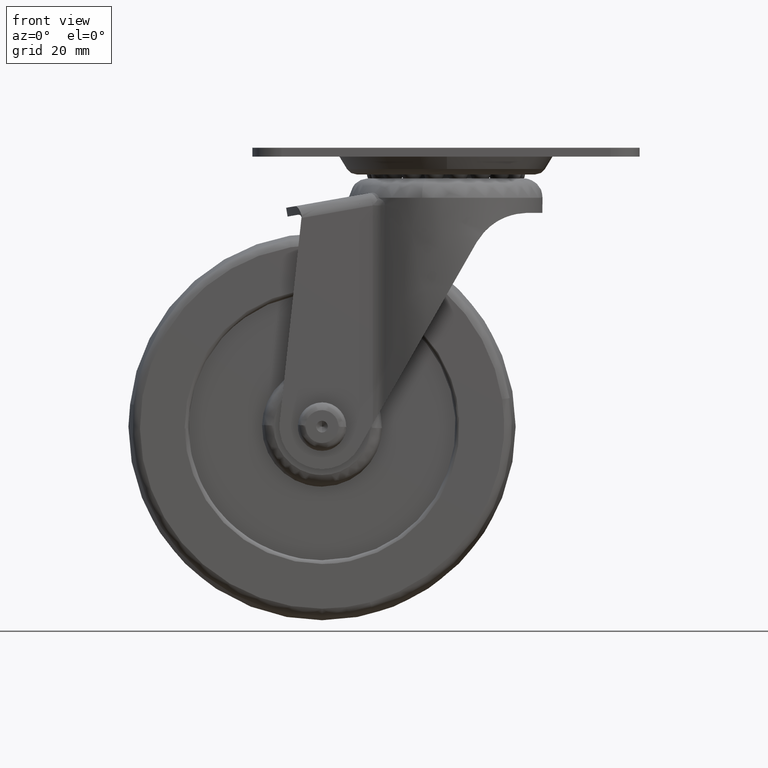
[diagram: clean part render]
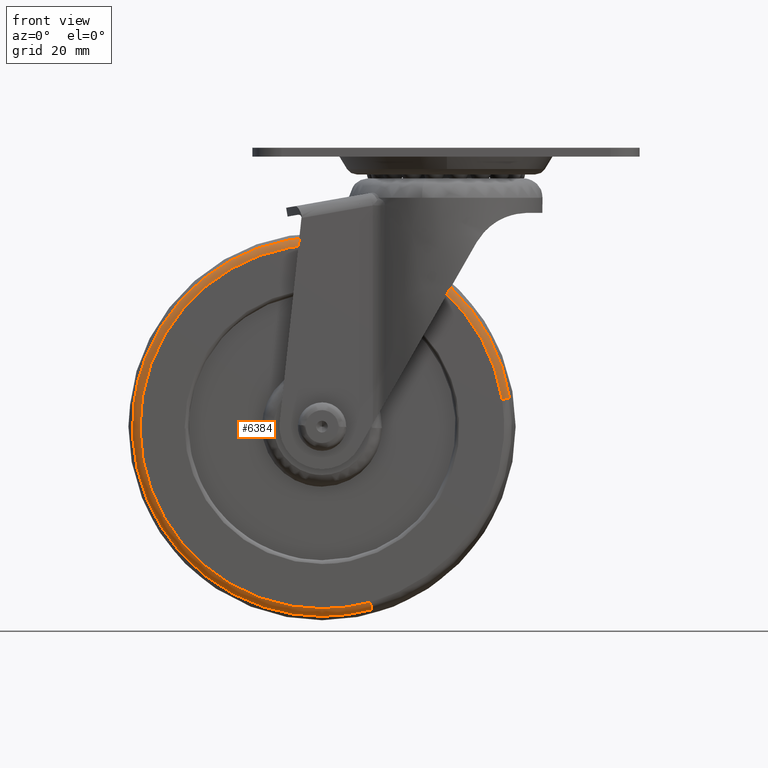
[diagram: same view with one face highlighted and labeled with its STEP entity id]
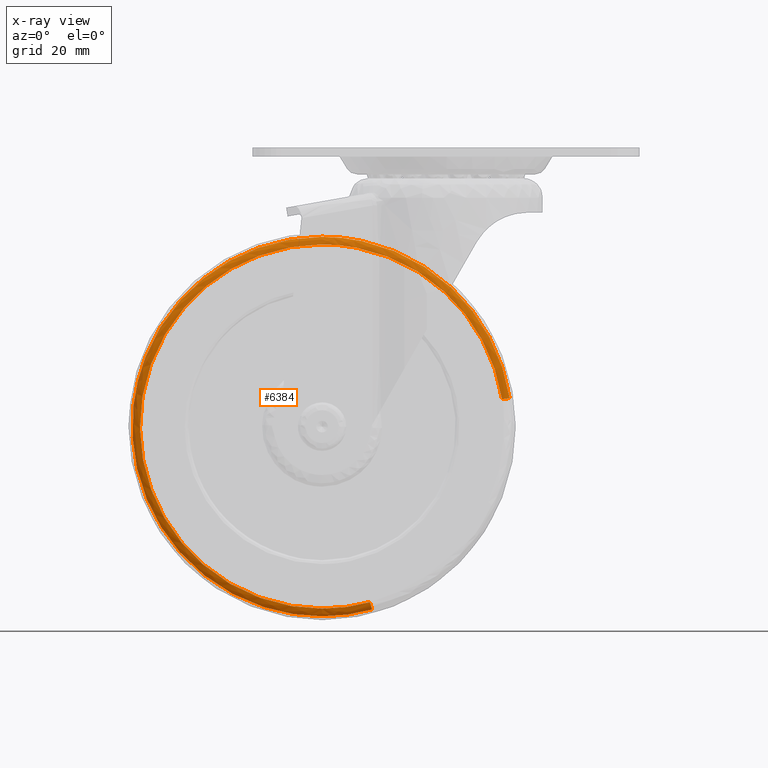
[diagram: x-ray of the same camera — body ghosted, the highlighted face saturated]
A machine part, front view. The second image highlights one B-rep face of the part: STEP entity #6384.
The next image is the same camera in x-ray: the body ghosted, the highlighted face saturated — about 0% of this face is hidden behind the body in this view.
In plain terms, the highlighted face is a freeform B-spline surface patch.
Its self-contained STEP definition (entity closure, byte-faithful):
#6173=CARTESIAN_POINT('',(12.903178560643820,-11.838232933250300,-47.261972426486572));
#6174=VERTEX_POINT('',#6173);
#6175=CARTESIAN_POINT('',(48.435740678916673,-11.838213538971610,7.359824665406185));
#6176=VERTEX_POINT('',#6175);
#6192=CARTESIAN_POINT('',(46.486915931268740,-13.499999999999170,7.063700831069298));
#6193=VERTEX_POINT('',#6192);
#6194=CARTESIAN_POINT('',(48.435740678916673,-11.838213538971607,7.359824665406185));
#6195=CARTESIAN_POINT('',(48.153850268417358,-13.499998507188804,7.316991429930903));
#6196=CARTESIAN_POINT('',(46.486915931268754,-13.499999999999163,7.063700831069298));
#6204=(BOUNDED_CURVE()B_SPLINE_CURVE(2,(#6194,#6195,#6196),.UNSPECIFIED.,.F.,.U.)B_SPLINE_CURVE_WITH_KNOTS((3,3),(-1.703928657413708,-0.288870877481267),.UNSPECIFIED.)CURVE()GEOMETRIC_REPRESENTATION_ITEM()RATIONAL_B_SPLINE_CURVE((0.893833881818771,0.684209894550764,0.895978119291706))REPRESENTATION_ITEM(''));
#6205=EDGE_CURVE('',#6176,#6193,#6204,.T.);
#6207=CARTESIAN_POINT('',(12.384016275081150,-13.499999999999170,-45.360375713613479));
#6208=VERTEX_POINT('',#6207);
#6224=CARTESIAN_POINT('',(12.903178560643823,-11.838232933250294,-47.261972426486579));
#6225=CARTESIAN_POINT('',(12.828079941960938,-13.499998687588873,-46.986899890463576));
#6226=CARTESIAN_POINT('',(12.384016275081146,-13.499999999999176,-45.360375713613479));
#6234=(BOUNDED_CURVE()B_SPLINE_CURVE(2,(#6224,#6225,#6226),.UNSPECIFIED.,.F.,.U.)B_SPLINE_CURVE_WITH_KNOTS((3,3),(-1.703917997500283,-0.288870869538946),.UNSPECIFIED.)CURVE()GEOMETRIC_REPRESENTATION_ITEM()RATIONAL_B_SPLINE_CURVE((0.855294211390510,0.654712475411669,0.857349026827509))REPRESENTATION_ITEM(''));
#6235=EDGE_CURVE('',#6174,#6208,#6234,.T.);
#6240=CARTESIAN_POINT('',(48.453074501481368,-11.712031403802978,7.362458538981688));
#6241=CARTESIAN_POINT('',(41.090631962499572,-11.712031403802978,55.815533040463059));
#6242=CARTESIAN_POINT('',(-7.362442538981783,-11.712031403802978,48.453090501481277));
#6243=CARTESIAN_POINT('',(-55.815517040463149,-11.712031403802978,41.090647962499489));
#6244=CARTESIAN_POINT('',(-48.453074501481368,-11.712031403802978,-7.362426538981881));
#6245=CARTESIAN_POINT('',(-41.090631962499572,-11.712031403802978,-55.815501040463232));
#6246=CARTESIAN_POINT('',(7.362442538981789,-11.712031403802978,-48.453058501481465));
#6247=CARTESIAN_POINT('',(10.169126452252513,-11.712031403802980,-48.026583004329915));
#6248=CARTESIAN_POINT('',(12.907795603532096,-11.712031403802978,-47.278888401893227));
#6249=CARTESIAN_POINT('',(48.252209078485201,-13.617655541869762,7.331937046793769));
#6250=CARTESIAN_POINT('',(40.920288031691321,-13.617655541869759,55.584146125278949));
#6251=CARTESIAN_POINT('',(-7.331921046793866,-13.617655541869762,48.252225078485104));
#6252=CARTESIAN_POINT('',(-55.584130125279046,-13.617655541869759,40.920304031691224));
#6253=CARTESIAN_POINT('',(-48.252209078485201,-13.617655541869762,-7.331905046793962));
#6254=CARTESIAN_POINT('',(-40.920288031691321,-13.617655541869759,-55.584114125279150));
#6255=CARTESIAN_POINT('',(7.331921046793873,-13.617655541869762,-48.252193078485284));
#6256=CARTESIAN_POINT('',(10.126969666386003,-13.617655541869761,-47.827485563696364));
#6257=CARTESIAN_POINT('',(12.854285483678449,-13.617655541869757,-47.082890578655160));
#6258=CARTESIAN_POINT('',(46.361356608419435,-13.495963753403281,7.044622097148515));
#6259=CARTESIAN_POINT('',(39.316750511270818,-13.495963753403277,53.405978705567939));
#6260=CARTESIAN_POINT('',(-7.044606097148610,-13.495963753403281,46.361372608419337));
#6261=CARTESIAN_POINT('',(-53.405962705568058,-13.495963753403277,39.316766511270735));
#6262=CARTESIAN_POINT('',(-46.361356608419442,-13.495963753403281,-7.044590097148708));
#6263=CARTESIAN_POINT('',(-39.316750511270818,-13.495963753403277,-53.405946705568148));
#6264=CARTESIAN_POINT('',(7.044606097148616,-13.495963753403281,-46.361340608419532));
#6265=CARTESIAN_POINT('',(9.730125543108235,-13.495963753403283,-45.953276046745721));
#6266=CARTESIAN_POINT('',(12.350566422480462,-13.495963753403284,-45.237859399723710));
#6274=(BOUNDED_SURFACE()B_SPLINE_SURFACE(2,2,((#6240,#6249,#6258),(#6241,#6250,#6259),(#6242,#6251,#6260),(#6243,#6252,#6261),(#6244,#6253,#6262),(#6245,#6254,#6263),(#6246,#6255,#6264),(#6247,#6256,#6265),(#6248,#6257,#6266)),.UNSPECIFIED.,.F.,.F.,.U.)B_SPLINE_SURFACE_WITH_KNOTS((3,2,2,2,3),(3,3),(0.0,81.201174039329686,162.402348078659400,243.603522117989090,250.099614685944600),(0.0,3.214153685653347),.UNSPECIFIED.)GEOMETRIC_REPRESENTATION_ITEM()RATIONAL_B_SPLINE_SURFACE(((0.915829664165875,0.662108244803736,0.918185613192416),(0.647589365943488,0.468181229780244,0.649255273476286),(0.915829664165875,0.662108244803736,0.918185613192416),(0.647589365943488,0.468181229780244,0.649255273476286),(0.915829664165875,0.662108244803736,0.918185613192416),(0.647589365943488,0.468181229780244,0.649255273476286),(0.915829664165875,0.662108244803736,0.918185613192416),(0.894370444784827,0.646594086838362,0.896671190503385),(0.876344699788468,0.633562193629608,0.878599074726477)))REPRESENTATION_ITEM('')SURFACE());
#6275=CARTESIAN_POINT('',(0.0,-11.838233890881041,-48.991695229283202));
#6276=VERTEX_POINT('',#6275);
#6277=CARTESIAN_POINT('',(0.0,-11.838233890881041,-48.991695229283202));
#6278=CARTESIAN_POINT('',(6.567527145123980,-11.838233722768766,-48.991694283617548));
#6279=CARTESIAN_POINT('',(12.903178560643816,-11.838232933250300,-47.261972426486572));
#6287=(BOUNDED_CURVE()B_SPLINE_CURVE(2,(#6277,#6278,#6279),.UNSPECIFIED.,.F.,.U.)B_SPLINE_CURVE_WITH_KNOTS((3,3),(0.0,0.044901926657986),.UNSPECIFIED.)CURVE()GEOMETRIC_REPRESENTATION_ITEM()RATIONAL_B_SPLINE_CURVE((1.0,0.947394120680868,0.913685084041468))REPRESENTATION_ITEM(''));
#6288=EDGE_CURVE('',#6276,#6174,#6287,.T.);
#6289=ORIENTED_EDGE('',*,*,#6288,.T.);
#6290=ORIENTED_EDGE('',*,*,#6235,.T.);
#6291=CARTESIAN_POINT('',(0.0,-13.499999999999121,-47.020500745329500));
#6292=VERTEX_POINT('',#6291);
#6293=CARTESIAN_POINT('',(0.0,-13.499999999999121,-47.020500745329500));
#6294=CARTESIAN_POINT('',(6.303281211679245,-13.499999999999124,-47.020500745329507));
#6295=CARTESIAN_POINT('',(12.384016275081143,-13.499999999999169,-45.360375713613479));
#6303=(BOUNDED_CURVE()B_SPLINE_CURVE(2,(#6293,#6294,#6295),.UNSPECIFIED.,.F.,.U.)B_SPLINE_CURVE_WITH_KNOTS((3,3),(0.0,0.044901926751259),.UNSPECIFIED.)CURVE()GEOMETRIC_REPRESENTATION_ITEM()RATIONAL_B_SPLINE_CURVE((1.0,0.947394120571591,0.913685083901422))REPRESENTATION_ITEM(''));
#6304=EDGE_CURVE('',#6292,#6208,#6303,.T.);
#6305=ORIENTED_EDGE('',*,*,#6304,.F.);
#6306=CARTESIAN_POINT('',(0.0,-13.499999999999121,47.020532745329312));
#6307=VERTEX_POINT('',#6306);
#6308=CARTESIAN_POINT('',(0.0,-13.499999999999121,47.020532745329312));
#6309=CARTESIAN_POINT('',(-47.020516745329395,-13.499999999999121,47.020532745329305));
#6310=CARTESIAN_POINT('',(-47.020516745329402,-13.499999999999121,0.000015999999905));
#6311=CARTESIAN_POINT('',(-47.020516745329395,-13.499999999999121,-47.020500745329500));
#6312=CARTESIAN_POINT('',(0.0,-13.499999999999121,-47.020500745329500));
#6320=(BOUNDED_CURVE()B_SPLINE_CURVE(2,(#6308,#6309,#6310,#6311,#6312),.UNSPECIFIED.,.F.,.U.)B_SPLINE_CURVE_WITH_KNOTS((3,2,3),(0.500000000000000,0.750000000000000,1.0),.UNSPECIFIED.)CURVE()GEOMETRIC_REPRESENTATION_ITEM()RATIONAL_B_SPLINE_CURVE((1.0,0.707106781186548,1.0,0.707106781186548,1.0))REPRESENTATION_ITEM(''));
#6321=EDGE_CURVE('',#6307,#6292,#6320,.T.);
#6322=ORIENTED_EDGE('',*,*,#6321,.F.);
#6323=CARTESIAN_POINT('',(46.486915931268740,-13.499999999999170,7.063700831069298));
#6324=CARTESIAN_POINT('',(40.415477066212858,-13.499999999999121,47.020532745329291));
#6325=CARTESIAN_POINT('',(0.0,-13.499999999999121,47.020532745329312));
#6333=(BOUNDED_CURVE()B_SPLINE_CURVE(2,(#6323,#6324,#6325),.UNSPECIFIED.,.F.,.U.)B_SPLINE_CURVE_WITH_KNOTS((3,3),(0.275897584625837,0.500000000000000),.UNSPECIFIED.)CURVE()GEOMETRIC_REPRESENTATION_ITEM()RATIONAL_B_SPLINE_CURVE((0.945604234430159,0.737447688868768,1.0))REPRESENTATION_ITEM(''));
#6334=EDGE_CURVE('',#6193,#6307,#6333,.T.);
#6335=ORIENTED_EDGE('',*,*,#6334,.F.);
#6336=ORIENTED_EDGE('',*,*,#6205,.F.);
#6337=CARTESIAN_POINT('',(0.0,-11.838198690109831,48.991733269337402));
#6338=VERTEX_POINT('',#6337);
#6339=CARTESIAN_POINT('',(48.435740678916673,-11.838213538971608,7.359824665406185));
#6340=CARTESIAN_POINT('',(42.109778009583387,-11.838198690109833,48.991733269337402));
#6341=CARTESIAN_POINT('',(0.0,-11.838198690109831,48.991733269337402));
#6349=(BOUNDED_CURVE()B_SPLINE_CURVE(2,(#6339,#6340,#6341),.UNSPECIFIED.,.F.,.U.)B_SPLINE_CURVE_WITH_KNOTS((3,3),(0.275897572905591,0.500000000000000),.UNSPECIFIED.)CURVE()GEOMETRIC_REPRESENTATION_ITEM()RATIONAL_B_SPLINE_CURVE((0.945604256202758,0.737447675137646,1.0))REPRESENTATION_ITEM(''));
#6350=EDGE_CURVE('',#6176,#6338,#6349,.T.);
#6351=ORIENTED_EDGE('',*,*,#6350,.T.);
#6352=CARTESIAN_POINT('',(-48.664044379754571,-11.838218219392839,5.656765708079123));
#6353=VERTEX_POINT('',#6352);
#6354=CARTESIAN_POINT('',(0.0,-11.838198690109831,48.991733269337402));
#6355=CARTESIAN_POINT('',(-43.626750402085797,-11.838208454751333,48.991730404552918));
#6356=CARTESIAN_POINT('',(-48.664044379754571,-11.838218219392843,5.656765708079123));
#6364=(BOUNDED_CURVE()B_SPLINE_CURVE(2,(#6354,#6355,#6356),.UNSPECIFIED.,.F.,.U.)B_SPLINE_CURVE_WITH_KNOTS((3,3),(0.500000000000000,0.730000141760548),.UNSPECIFIED.)CURVE()GEOMETRIC_REPRESENTATION_ITEM()RATIONAL_B_SPLINE_CURVE((1.0,0.730538072608811,0.956886397209974))REPRESENTATION_ITEM(''));
#6365=EDGE_CURVE('',#6338,#6353,#6364,.T.);
#6366=ORIENTED_EDGE('',*,*,#6365,.T.);
#6367=CARTESIAN_POINT('',(-48.664044379754571,-11.838218219392843,5.656765708079123));
#6368=CARTESIAN_POINT('',(-48.991713831446368,-11.838218623577283,2.837881196718123));
#6369=CARTESIAN_POINT('',(-48.991713754085467,-11.838219077465959,0.000016293485072));
#6370=CARTESIAN_POINT('',(-48.991712418559189,-11.838226913210059,-48.991695091040754));
#6371=CARTESIAN_POINT('',(0.0,-11.838233890881041,-48.991695229283202));
#6379=(BOUNDED_CURVE()B_SPLINE_CURVE(2,(#6367,#6368,#6369,#6370,#6371),.UNSPECIFIED.,.F.,.U.)B_SPLINE_CURVE_WITH_KNOTS((3,2,3),(0.730000141760548,0.750000000000000,1.0),.UNSPECIFIED.)CURVE()GEOMETRIC_REPRESENTATION_ITEM()RATIONAL_B_SPLINE_CURVE((0.956886397209974,0.976568708577737,1.0,0.707106781186548,1.0))REPRESENTATION_ITEM(''));
#6380=EDGE_CURVE('',#6353,#6276,#6379,.T.);
#6381=ORIENTED_EDGE('',*,*,#6380,.T.);
#6382=EDGE_LOOP('',(#6289,#6290,#6305,#6322,#6335,#6336,#6351,#6366,#6381));
#6383=FACE_OUTER_BOUND('',#6382,.T.);
#6384=ADVANCED_FACE('',(#6383),#6274,.T.);